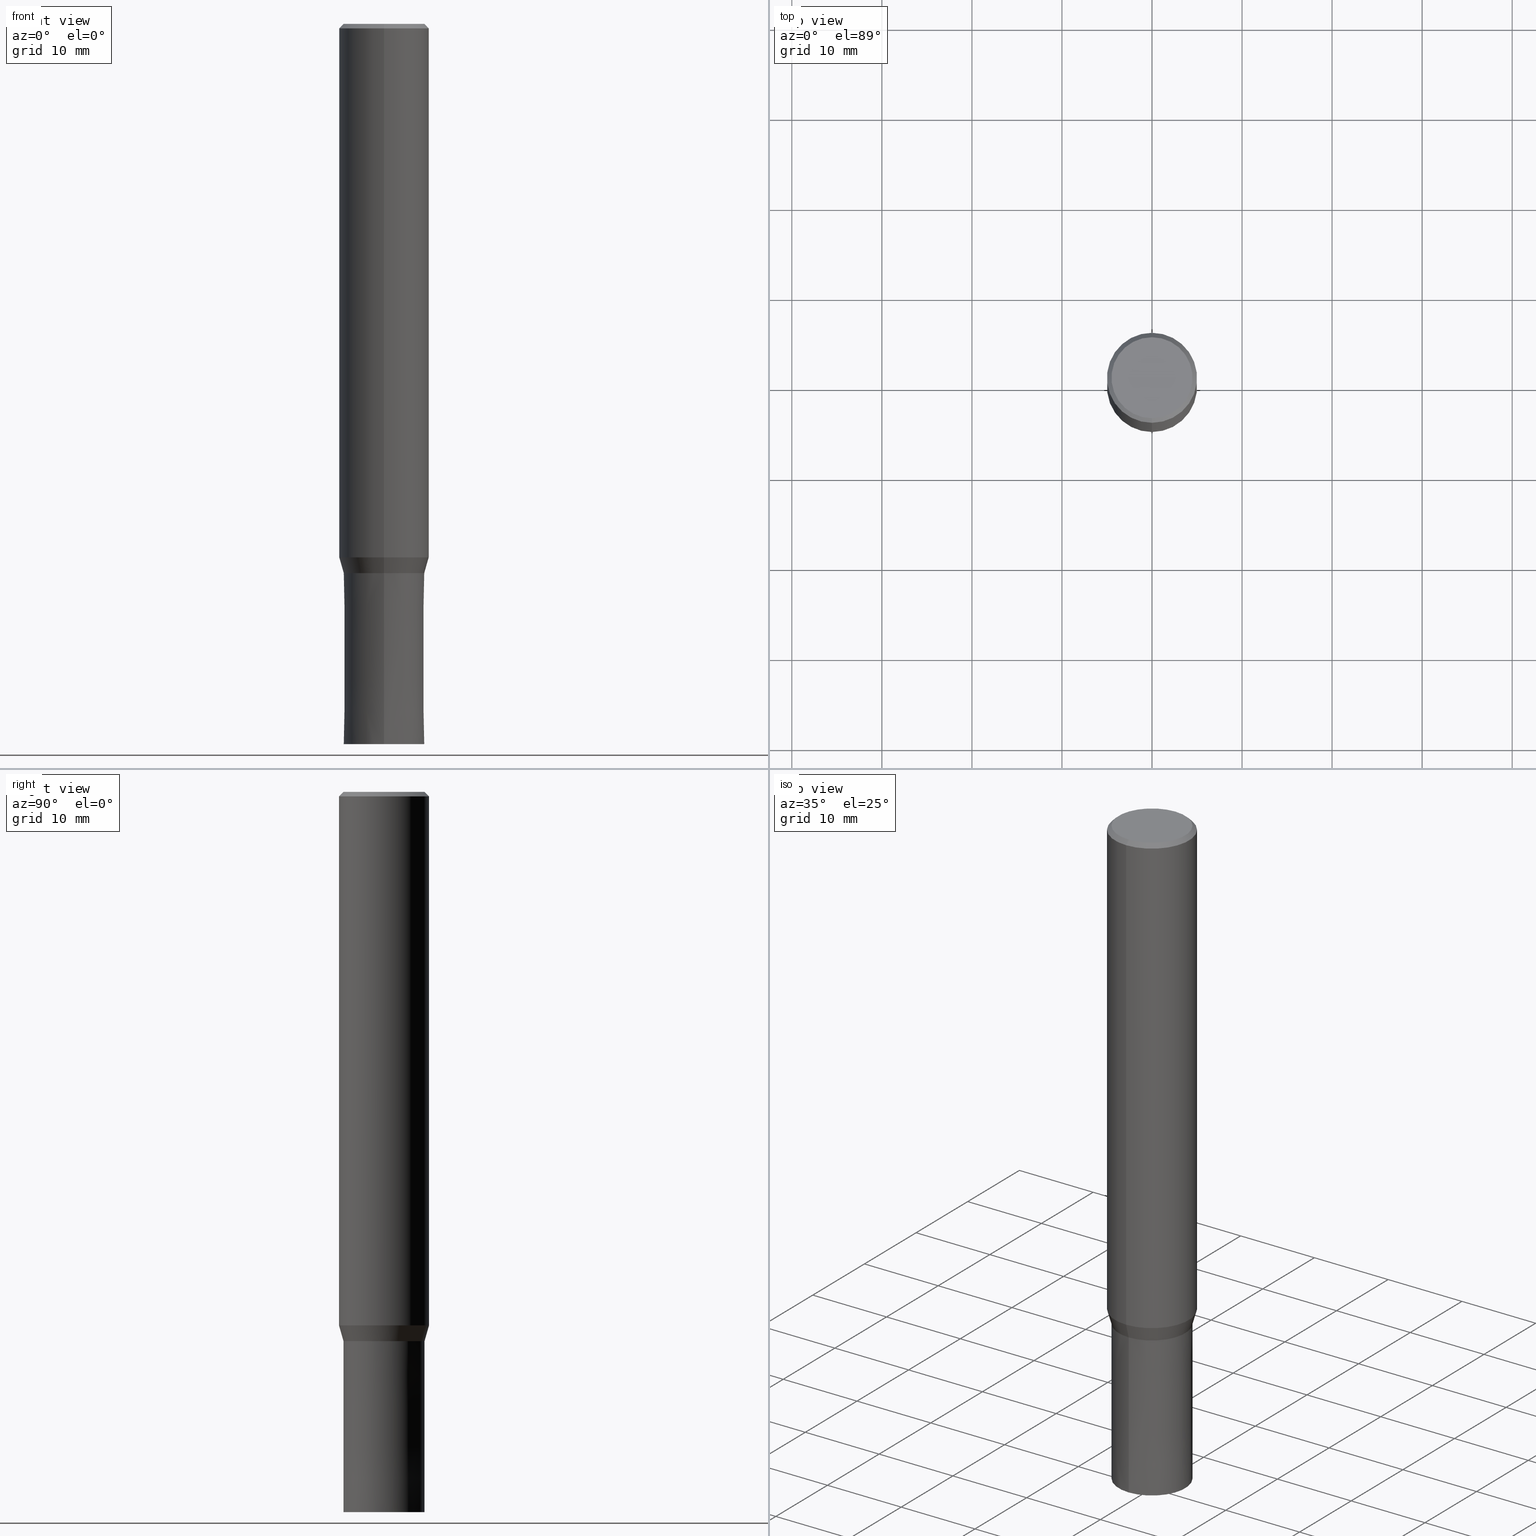
[diagram: canonical four-view strip — front | top / right | iso, engineering-drawing reading convention]
A machine part, canonical four-view strip (front | top / right | iso — engineering-drawing reading convention). The complete STEP part file that produces these views, byte-faithful:
ISO-10303-21;
HEADER;
FILE_DESCRIPTION(('no description'),'unknown implementation level');
FILE_NAME('CZS4090-1900-Huellk.stp','  ',('CIMSOURCE GmbH'),('CADClick - KiM GmbH - www.kimweb.de'),'unknown preprocess','ACIS','unknown authorization');
FILE_SCHEMA(('automotive_design'));
ENDSEC;
DATA;
#1=MECHANICAL_DESIGN_GEOMETRIC_PRESENTATION_REPRESENTATION(' ',(#14,#15,#16,#17,#18,#19,#20,#21,#22,#23,#24,#25,#26,#27,#28,#29,#30,#31,#32,#33,#34,#35,#36,#37,#38,#39,#40,#41,#42,#43,#44,#45,#46,#47,#48,#49,#50,#51,#52,#53,#54,#55,#56,#57,#58,#59,#60,#61,#62,#63,#64),#10);
#2=PRODUCT_DEFINITION_CONTEXT('',#65,'design');
#3=APPLICATION_PROTOCOL_DEFINITION('INTERNATIONAL STANDARD','automotive_design',1994,#65);
#4=PRODUCT_CATEGORY_RELATIONSHIP('NONE','NONE',#66,#67);
#5=SHAPE_DEFINITION_REPRESENTATION(#68,#69);
#6=PRODUCT_DEFINITION_CONTEXT('',#70,'design');
#7=APPLICATION_PROTOCOL_DEFINITION('INTERNATIONAL STANDARD','automotive_design',1994,#70);
#8=PRODUCT_CATEGORY_RELATIONSHIP('NONE','NONE',#71,#72);
#9=SHAPE_DEFINITION_REPRESENTATION(#73,#74);
#10= (GEOMETRIC_REPRESENTATION_CONTEXT(3)GLOBAL_UNCERTAINTY_ASSIGNED_CONTEXT((#77))GLOBAL_UNIT_ASSIGNED_CONTEXT((#79,#80,#81))REPRESENTATION_CONTEXT('NONE','WORKSPACE'));
#14=STYLED_ITEM('',(#83),#84);
#15=STYLED_ITEM('',(#85),#86);
#16=STYLED_ITEM('',(#87),#88);
#17=STYLED_ITEM('',(#89),#90);
#18=STYLED_ITEM('',(#91),#92);
#19=STYLED_ITEM('',(#93),#94);
#20=STYLED_ITEM('',(#95),#96);
#21=STYLED_ITEM('',(#97),#98);
#22=STYLED_ITEM('',(#99),#100);
#23=STYLED_ITEM('',(#101),#102);
#24=STYLED_ITEM('',(#103),#104);
#25=STYLED_ITEM('',(#105),#106);
#26=STYLED_ITEM('',(#107),#108);
#27=STYLED_ITEM('',(#109),#110);
#28=STYLED_ITEM('',(#111),#112);
#29=STYLED_ITEM('',(#113),#114);
#30=STYLED_ITEM('',(#115),#116);
#31=STYLED_ITEM('',(#117),#118);
#32=STYLED_ITEM('',(#119),#120);
#33=STYLED_ITEM('',(#121),#122);
#34=STYLED_ITEM('',(#123),#124);
#35=STYLED_ITEM('',(#125),#126);
#36=STYLED_ITEM('',(#127),#128);
#37=STYLED_ITEM('',(#129),#130);
#38=STYLED_ITEM('',(#131),#132);
#39=STYLED_ITEM('',(#133),#134);
#40=STYLED_ITEM('',(#135),#136);
#41=STYLED_ITEM('',(#137),#138);
#42=STYLED_ITEM('',(#139),#140);
#43=STYLED_ITEM('',(#141),#142);
#44=STYLED_ITEM('',(#143),#144);
#45=STYLED_ITEM('',(#145),#146);
#46=STYLED_ITEM('',(#147),#148);
#47=STYLED_ITEM('',(#149),#150);
#48=STYLED_ITEM('',(#151),#152);
#49=STYLED_ITEM('',(#153),#154);
#50=STYLED_ITEM('',(#155),#156);
#51=STYLED_ITEM('',(#157),#158);
#52=STYLED_ITEM('',(#159),#160);
#53=STYLED_ITEM('',(#161),#162);
#54=STYLED_ITEM('',(#163),#164);
#55=STYLED_ITEM('',(#165),#166);
#56=STYLED_ITEM('',(#167),#168);
#57=STYLED_ITEM('',(#169),#170);
#58=STYLED_ITEM('',(#171),#172);
#59=STYLED_ITEM('',(#173),#174);
#60=STYLED_ITEM('',(#175),#176);
#61=STYLED_ITEM('',(#177),#178);
#62=STYLED_ITEM('',(#179),#180);
#63=STYLED_ITEM('',(#181),#182);
#64=STYLED_ITEM('',(#183),#184);
#65=APPLICATION_CONTEXT(' ');
#66=PRODUCT_CATEGORY('part','NONE');
#67=PRODUCT_RELATED_PRODUCT_CATEGORY('detail',' ',(#185));
#68=PRODUCT_DEFINITION_SHAPE('NONE','NONE',#186);
#69=ADVANCED_BREP_SHAPE_REPRESENTATION('1',(#110,#187),#10);
#70=APPLICATION_CONTEXT(' ');
#71=PRODUCT_CATEGORY('part','NONE');
#72=PRODUCT_RELATED_PRODUCT_CATEGORY('detail',' ',(#188));
#73=PRODUCT_DEFINITION_SHAPE('NONE','NONE',#189);
#74=ADVANCED_BREP_SHAPE_REPRESENTATION('2',(#172,#190),#10);
#77=UNCERTAINTY_MEASURE_WITH_UNIT(LENGTH_MEASURE(1.0E-006),#79,'','');
#79= (CONVERSION_BASED_UNIT('MILLIMETRE',#193)LENGTH_UNIT()NAMED_UNIT(#196));
#80= (NAMED_UNIT(#198)PLANE_ANGLE_UNIT()SI_UNIT($,.RADIAN.));
#81= (NAMED_UNIT(#198)SOLID_ANGLE_UNIT()SI_UNIT($,.STERADIAN.));
#83=PRESENTATION_STYLE_ASSIGNMENT((#204));
#84=VERTEX_POINT('',#205);
#85=PRESENTATION_STYLE_ASSIGNMENT((#206));
#86=ADVANCED_FACE('',(#207),#208,.T.);
#87=PRESENTATION_STYLE_ASSIGNMENT((#209));
#88=EDGE_CURVE('',#142,#154,#210,.T.);
#89=PRESENTATION_STYLE_ASSIGNMENT((#211));
#90=VERTEX_POINT('',#212);
#91=PRESENTATION_STYLE_ASSIGNMENT((#213));
#92=EDGE_CURVE('',#106,#160,#214,.T.);
#93=PRESENTATION_STYLE_ASSIGNMENT((#215));
#94=EDGE_CURVE('',#154,#90,#216,.T.);
#95=PRESENTATION_STYLE_ASSIGNMENT((#217));
#96=EDGE_CURVE('',#108,#180,#218,.T.);
#97=PRESENTATION_STYLE_ASSIGNMENT((#219));
#98=ADVANCED_FACE('',(#220),#221,.T.);
#99=PRESENTATION_STYLE_ASSIGNMENT((#222));
#100=EDGE_CURVE('',#182,#180,#223,.T.);
#101=PRESENTATION_STYLE_ASSIGNMENT((#224));
#102=VERTEX_POINT('',#225);
#103=PRESENTATION_STYLE_ASSIGNMENT((#226));
#104=EDGE_CURVE('',#144,#84,#227,.T.);
#105=PRESENTATION_STYLE_ASSIGNMENT((#228));
#106=VERTEX_POINT('',#229);
#107=PRESENTATION_STYLE_ASSIGNMENT((#230));
#108=VERTEX_POINT('',#231);
#109=PRESENTATION_STYLE_ASSIGNMENT((#232));
#110=MANIFOLD_SOLID_BREP('1',#233);
#111=PRESENTATION_STYLE_ASSIGNMENT((#234));
#112=EDGE_CURVE('',#90,#154,#235,.T.);
#113=PRESENTATION_STYLE_ASSIGNMENT((#236));
#114=ADVANCED_FACE('',(#237,#238),#239,.T.);
#115=PRESENTATION_STYLE_ASSIGNMENT((#240));
#116=ADVANCED_FACE('',(#241),#242,.T.);
#117=PRESENTATION_STYLE_ASSIGNMENT((#243));
#118=ADVANCED_FACE('',(#244),#245,.T.);
#119=PRESENTATION_STYLE_ASSIGNMENT((#246));
#120=VERTEX_POINT('',#247);
#121=PRESENTATION_STYLE_ASSIGNMENT((#248));
#122=EDGE_CURVE('',#160,#138,#249,.T.);
#123=PRESENTATION_STYLE_ASSIGNMENT((#250));
#124=ADVANCED_FACE('',(#251),#252,.T.);
#125=PRESENTATION_STYLE_ASSIGNMENT((#253));
#126=ADVANCED_FACE('',(#254),#255,.T.);
#127=PRESENTATION_STYLE_ASSIGNMENT((#256));
#128=EDGE_CURVE('',#138,#108,#257,.T.);
#129=PRESENTATION_STYLE_ASSIGNMENT((#258));
#130=VERTEX_POINT('',#259);
#131=PRESENTATION_STYLE_ASSIGNMENT((#260));
#132=EDGE_CURVE('',#130,#144,#261,.T.);
#133=PRESENTATION_STYLE_ASSIGNMENT((#262));
#134=EDGE_CURVE('',#102,#130,#263,.T.);
#135=PRESENTATION_STYLE_ASSIGNMENT((#264));
#136=EDGE_CURVE('',#84,#144,#265,.T.);
#137=PRESENTATION_STYLE_ASSIGNMENT((#266));
#138=VERTEX_POINT('',#267);
#139=PRESENTATION_STYLE_ASSIGNMENT((#268));
#140=ADVANCED_FACE('',(#269),#270,.T.);
#141=PRESENTATION_STYLE_ASSIGNMENT((#271));
#142=VERTEX_POINT('',#272);
#143=PRESENTATION_STYLE_ASSIGNMENT((#273));
#144=VERTEX_POINT('',#274);
#145=PRESENTATION_STYLE_ASSIGNMENT((#275));
#146=EDGE_CURVE('',#108,#106,#276,.T.);
#147=PRESENTATION_STYLE_ASSIGNMENT((#277));
#148=EDGE_CURVE('',#180,#182,#278,.T.);
#149=PRESENTATION_STYLE_ASSIGNMENT((#279));
#150=EDGE_CURVE('',#120,#142,#280,.T.);
#151=PRESENTATION_STYLE_ASSIGNMENT((#281));
#152=EDGE_CURVE('',#182,#106,#282,.T.);
#153=PRESENTATION_STYLE_ASSIGNMENT((#283));
#154=VERTEX_POINT('',#284);
#155=PRESENTATION_STYLE_ASSIGNMENT((#285));
#156=EDGE_CURVE('',#138,#160,#286,.T.);
#157=PRESENTATION_STYLE_ASSIGNMENT((#287));
#158=ADVANCED_FACE('',(#288),#289,.T.);
#159=PRESENTATION_STYLE_ASSIGNMENT((#290));
#160=VERTEX_POINT('',#291);
#161=PRESENTATION_STYLE_ASSIGNMENT((#292));
#162=EDGE_CURVE('',#84,#102,#293,.T.);
#163=PRESENTATION_STYLE_ASSIGNMENT((#294));
#164=EDGE_CURVE('',#106,#108,#295,.T.);
#165=PRESENTATION_STYLE_ASSIGNMENT((#296));
#166=ADVANCED_FACE('',(#297),#298,.T.);
#167=PRESENTATION_STYLE_ASSIGNMENT((#299));
#168=ADVANCED_FACE('',(#300),#301,.T.);
#169=PRESENTATION_STYLE_ASSIGNMENT((#302));
#170=ADVANCED_FACE('',(#303),#304,.T.);
#171=PRESENTATION_STYLE_ASSIGNMENT((#305));
#172=MANIFOLD_SOLID_BREP('2',#306);
#173=PRESENTATION_STYLE_ASSIGNMENT((#307));
#174=EDGE_CURVE('',#90,#120,#308,.T.);
#175=PRESENTATION_STYLE_ASSIGNMENT((#309));
#176=ADVANCED_FACE('',(#310),#311,.T.);
#177=PRESENTATION_STYLE_ASSIGNMENT((#312));
#178=EDGE_CURVE('',#142,#120,#313,.T.);
#179=PRESENTATION_STYLE_ASSIGNMENT((#314));
#180=VERTEX_POINT('',#315);
#181=PRESENTATION_STYLE_ASSIGNMENT((#316));
#182=VERTEX_POINT('',#317);
#183=PRESENTATION_STYLE_ASSIGNMENT((#318));
#184=EDGE_CURVE('',#130,#102,#319,.T.);
#185=PRODUCT('1','1','PART-1-DESC',(#320));
#186=PRODUCT_DEFINITION('NONE','NONE',#321,#2);
#187=AXIS2_PLACEMENT_3D('',#322,#323,#324);
#188=PRODUCT('2','2','PART-2-DESC',(#325));
#189=PRODUCT_DEFINITION('NONE','NONE',#326,#6);
#190=AXIS2_PLACEMENT_3D('',#327,#328,#329);
#193=LENGTH_MEASURE_WITH_UNIT(LENGTH_MEASURE(1.0),#330);
#196=DIMENSIONAL_EXPONENTS(1.0,0.0,0.0,0.0,0.0,0.0,0.0);
#198=DIMENSIONAL_EXPONENTS(0.0,0.0,0.0,0.0,0.0,0.0,0.0);
#204=POINT_STYLE(' ',#331,POSITIVE_LENGTH_MEASURE(1.0E-006),#332);
#205=CARTESIAN_POINT('',(5.5107285922007E-016,-4.5,-80.0));
#206=SURFACE_STYLE_USAGE(.BOTH.,#333);
#207=FACE_OUTER_BOUND('',#334,.T.);
#208=CONICAL_SURFACE('',#335,4.74995,0.279208199033747);
#209=CURVE_STYLE('',#336,POSITIVE_LENGTH_MEASURE(1.0E-006),#337);
#210=LINE('',#338,#339);
#211=POINT_STYLE(' ',#340,POSITIVE_LENGTH_MEASURE(1.0E-006),#341);
#212=CARTESIAN_POINT('',(0.0,4.99995,-59.256));
#213=CURVE_STYLE('',#342,POSITIVE_LENGTH_MEASURE(1.0E-006),#343);
#214=LINE('',#344,#345);
#215=CURVE_STYLE('',#346,POSITIVE_LENGTH_MEASURE(1.0E-006),#347);
#216=CIRCLE('',#348,4.99995);
#217=CURVE_STYLE('',#349,POSITIVE_LENGTH_MEASURE(1.0E-006),#350);
#218=LINE('',#351,#352);
#219=SURFACE_STYLE_USAGE(.BOTH.,#353);
#220=FACE_OUTER_BOUND('',#354,.T.);
#221=PLANE('',#355);
#222=CURVE_STYLE('',#356,POSITIVE_LENGTH_MEASURE(1.0E-006),#357);
#223=CIRCLE('',#358,4.5);
#224=POINT_STYLE(' ',#359,POSITIVE_LENGTH_MEASURE(1.0E-006),#360);
#225=CARTESIAN_POINT('',(5.51060613156532E-016,-4.4999,-61.0));
#226=CURVE_STYLE('',#361,POSITIVE_LENGTH_MEASURE(1.0E-006),#362);
#227=CIRCLE('',#363,4.5);
#228=POINT_STYLE(' ',#364,POSITIVE_LENGTH_MEASURE(1.0E-006),#365);
#229=CARTESIAN_POINT('',(0.0,5.0,-0.5));
#230=POINT_STYLE(' ',#366,POSITIVE_LENGTH_MEASURE(1.0E-006),#367);
#231=CARTESIAN_POINT('',(6.12303176911189E-016,-5.0,-0.5));
#232=SURFACE_STYLE_USAGE(.BOTH.,#368);
#233=CLOSED_SHELL('',(#158,#116,#140,#114,#166,#176,#168,#86,#124));
#234=CURVE_STYLE('',#369,POSITIVE_LENGTH_MEASURE(1.0E-006),#370);
#235=CIRCLE('',#371,4.99995);
#236=SURFACE_STYLE_USAGE(.BOTH.,#372);
#237=FACE_OUTER_BOUND('',#373,.T.);
#238=FACE_BOUND('',#374,.T.);
#239=PLANE('',#375);
#240=SURFACE_STYLE_USAGE(.BOTH.,#376);
#241=FACE_OUTER_BOUND('',#377,.T.);
#242=CYLINDRICAL_SURFACE('',#378,5.0);
#243=SURFACE_STYLE_USAGE(.BOTH.,#379);
#244=FACE_OUTER_BOUND('',#380,.T.);
#245=CONICAL_SURFACE('',#381,4.49995,5.26315789467598E-006);
#246=POINT_STYLE(' ',#382,POSITIVE_LENGTH_MEASURE(1.0E-006),#383);
#247=CARTESIAN_POINT('',(0.0,4.49995,-61.0));
#248=CURVE_STYLE('',#384,POSITIVE_LENGTH_MEASURE(1.0E-006),#385);
#249=CIRCLE('',#386,5.0);
#250=SURFACE_STYLE_USAGE(.BOTH.,#387);
#251=FACE_OUTER_BOUND('',#388,.T.);
#252=PLANE('',#389);
#253=SURFACE_STYLE_USAGE(.BOTH.,#390);
#254=FACE_OUTER_BOUND('',#391,.T.);
#255=CONICAL_SURFACE('',#392,4.49995,5.26315789467598E-006);
#256=CURVE_STYLE('',#393,POSITIVE_LENGTH_MEASURE(1.0E-006),#394);
#257=LINE('',#395,#396);
#258=POINT_STYLE(' ',#397,POSITIVE_LENGTH_MEASURE(1.0E-006),#398);
#259=CARTESIAN_POINT('',(0.0,4.4999,-61.0));
#260=CURVE_STYLE('',#399,POSITIVE_LENGTH_MEASURE(1.0E-006),#400);
#261=LINE('',#401,#402);
#262=CURVE_STYLE('',#403,POSITIVE_LENGTH_MEASURE(1.0E-006),#404);
#263=CIRCLE('',#405,4.4999);
#264=CURVE_STYLE('',#406,POSITIVE_LENGTH_MEASURE(1.0E-006),#407);
#265=CIRCLE('',#408,4.5);
#266=POINT_STYLE(' ',#409,POSITIVE_LENGTH_MEASURE(1.0E-006),#410);
#267=CARTESIAN_POINT('',(6.12303176911189E-016,-5.0,-59.256));
#268=SURFACE_STYLE_USAGE(.BOTH.,#411);
#269=FACE_OUTER_BOUND('',#412,.T.);
#270=CONICAL_SURFACE('',#413,4.75,0.785398163397448);
#271=POINT_STYLE(' ',#414,POSITIVE_LENGTH_MEASURE(1.0E-006),#415);
#272=CARTESIAN_POINT('',(5.51066736188301E-016,-4.49995,-61.0));
#273=POINT_STYLE(' ',#416,POSITIVE_LENGTH_MEASURE(1.0E-006),#417);
#274=CARTESIAN_POINT('',(0.0,4.5,-80.0));
#275=CURVE_STYLE('',#418,POSITIVE_LENGTH_MEASURE(1.0E-006),#419);
#276=CIRCLE('',#420,5.0);
#277=CURVE_STYLE('',#421,POSITIVE_LENGTH_MEASURE(1.0E-006),#422);
#278=CIRCLE('',#423,4.5);
#279=CURVE_STYLE('',#424,POSITIVE_LENGTH_MEASURE(1.0E-006),#425);
#280=CIRCLE('',#426,4.49995);
#281=CURVE_STYLE('',#427,POSITIVE_LENGTH_MEASURE(1.0E-006),#428);
#282=LINE('',#429,#430);
#283=POINT_STYLE(' ',#431,POSITIVE_LENGTH_MEASURE(1.0E-006),#432);
#284=CARTESIAN_POINT('',(6.12297053879419E-016,-4.99995,-59.256));
#285=CURVE_STYLE('',#433,POSITIVE_LENGTH_MEASURE(1.0E-006),#434);
#286=CIRCLE('',#435,5.0);
#287=SURFACE_STYLE_USAGE(.BOTH.,#436);
#288=FACE_OUTER_BOUND('',#437,.T.);
#289=CONICAL_SURFACE('',#438,4.74995,0.279208199033747);
#290=POINT_STYLE(' ',#439,POSITIVE_LENGTH_MEASURE(1.0E-006),#440);
#291=CARTESIAN_POINT('',(0.0,5.0,-59.256));
#292=CURVE_STYLE('',#441,POSITIVE_LENGTH_MEASURE(1.0E-006),#442);
#293=LINE('',#443,#444);
#294=CURVE_STYLE('',#445,POSITIVE_LENGTH_MEASURE(1.0E-006),#446);
#295=CIRCLE('',#447,5.0);
#296=SURFACE_STYLE_USAGE(.BOTH.,#448);
#297=FACE_OUTER_BOUND('',#449,.T.);
#298=PLANE('',#450);
#299=SURFACE_STYLE_USAGE(.BOTH.,#451);
#300=FACE_OUTER_BOUND('',#452,.T.);
#301=CYLINDRICAL_SURFACE('',#453,5.0);
#302=SURFACE_STYLE_USAGE(.BOTH.,#454);
#303=FACE_OUTER_BOUND('',#455,.T.);
#304=PLANE('',#456);
#305=SURFACE_STYLE_USAGE(.BOTH.,#457);
#306=CLOSED_SHELL('',(#118,#170,#126,#98));
#307=CURVE_STYLE('',#458,POSITIVE_LENGTH_MEASURE(1.0E-006),#459);
#308=LINE('',#460,#461);
#309=SURFACE_STYLE_USAGE(.BOTH.,#462);
#310=FACE_OUTER_BOUND('',#463,.T.);
#311=CONICAL_SURFACE('',#464,4.75,0.785398163397448);
#312=CURVE_STYLE('',#465,POSITIVE_LENGTH_MEASURE(1.0E-006),#466);
#313=CIRCLE('',#467,4.49995);
#314=POINT_STYLE(' ',#468,POSITIVE_LENGTH_MEASURE(1.0E-006),#469);
#315=CARTESIAN_POINT('',(5.5107285922007E-016,-4.5,0.0));
#316=POINT_STYLE(' ',#470,POSITIVE_LENGTH_MEASURE(1.0E-006),#471);
#317=CARTESIAN_POINT('',(0.0,4.5,0.0));
#318=CURVE_STYLE('',#472,POSITIVE_LENGTH_MEASURE(1.0E-006),#473);
#319=CIRCLE('',#474,4.4999);
#320=PRODUCT_CONTEXT('',#65,'mechanical');
#321=PRODUCT_DEFINITION_FORMATION_WITH_SPECIFIED_SOURCE(' ','NONE',#185,.NOT_KNOWN.);
#322=CARTESIAN_POINT('',(0.0,0.0,0.0));
#323=DIRECTION('',(0.0,0.0,1.0));
#324=DIRECTION('',(1.0,0.0,0.0));
#325=PRODUCT_CONTEXT('',#70,'mechanical');
#326=PRODUCT_DEFINITION_FORMATION_WITH_SPECIFIED_SOURCE(' ','NONE',#188,.NOT_KNOWN.);
#327=CARTESIAN_POINT('',(0.0,0.0,0.0));
#328=DIRECTION('',(0.0,0.0,1.0));
#329=DIRECTION('',(1.0,0.0,0.0));
#330= (NAMED_UNIT(#196)LENGTH_UNIT()SI_UNIT(.MILLI.,.METRE.));
#331=PRE_DEFINED_MARKER('');
#332=COLOUR_RGB('',0.800000011920929,0.800000011920929,0.800000011920929);
#333=SURFACE_SIDE_STYLE('',(#476));
#334=EDGE_LOOP('',(#477,#478,#479,#480));
#335=AXIS2_PLACEMENT_3D('',#481,#482,#483);
#336=DRAUGHTING_PRE_DEFINED_CURVE_FONT('continuous');
#337=COLOUR_RGB('',0.498039215803146,0.498039215803146,0.498039215803146);
#338=CARTESIAN_POINT('',(5.8168189503386E-016,-4.74995,-60.128));
#339=VECTOR('',#484,1.0);
#340=PRE_DEFINED_MARKER('');
#341=COLOUR_RGB('',0.498039215803146,0.498039215803146,0.498039215803146);
#342=DRAUGHTING_PRE_DEFINED_CURVE_FONT('continuous');
#343=COLOUR_RGB('',0.498039215803146,0.498039215803146,0.498039215803146);
#344=CARTESIAN_POINT('',(-6.12303176911189E-016,5.0,-29.878));
#345=VECTOR('',#485,1.0);
#346=DRAUGHTING_PRE_DEFINED_CURVE_FONT('continuous');
#347=COLOUR_RGB('',0.498039215803146,0.498039215803146,0.498039215803146);
#348=AXIS2_PLACEMENT_3D('',#486,#487,#488);
#349=DRAUGHTING_PRE_DEFINED_CURVE_FONT('continuous');
#350=COLOUR_RGB('',0.498039215803146,0.498039215803146,0.498039215803146);
#351=CARTESIAN_POINT('',(5.81688018065629E-016,-4.75,-0.25));
#352=VECTOR('',#489,1.0);
#353=SURFACE_SIDE_STYLE('',(#490));
#354=EDGE_LOOP('',(#491,#492));
#355=AXIS2_PLACEMENT_3D('',#493,#494,#495);
#356=DRAUGHTING_PRE_DEFINED_CURVE_FONT('continuous');
#357=COLOUR_RGB('',0.498039215803146,0.498039215803146,0.498039215803146);
#358=AXIS2_PLACEMENT_3D('',#496,#497,#498);
#359=PRE_DEFINED_MARKER('');
#360=COLOUR_RGB('',0.800000011920929,0.800000011920929,0.800000011920929);
#361=DRAUGHTING_PRE_DEFINED_CURVE_FONT('continuous');
#362=COLOUR_RGB('',0.800000011920929,0.800000011920929,0.800000011920929);
#363=AXIS2_PLACEMENT_3D('',#499,#500,#501);
#364=PRE_DEFINED_MARKER('');
#365=COLOUR_RGB('',0.498039215803146,0.498039215803146,0.498039215803146);
#366=PRE_DEFINED_MARKER('');
#367=COLOUR_RGB('',0.498039215803146,0.498039215803146,0.498039215803146);
#368=SURFACE_SIDE_STYLE('',(#502));
#369=DRAUGHTING_PRE_DEFINED_CURVE_FONT('continuous');
#370=COLOUR_RGB('',0.498039215803146,0.498039215803146,0.498039215803146);
#371=AXIS2_PLACEMENT_3D('',#503,#504,#505);
#372=SURFACE_SIDE_STYLE('',(#506));
#373=EDGE_LOOP('',(#507,#508));
#374=EDGE_LOOP('',(#509,#510));
#375=AXIS2_PLACEMENT_3D('',#511,#512,#513);
#376=SURFACE_SIDE_STYLE('',(#514));
#377=EDGE_LOOP('',(#515,#516,#517,#518));
#378=AXIS2_PLACEMENT_3D('',#519,#520,#521);
#379=SURFACE_SIDE_STYLE('',(#522));
#380=EDGE_LOOP('',(#523,#524,#525,#526));
#381=AXIS2_PLACEMENT_3D('',#527,#528,#529);
#382=PRE_DEFINED_MARKER('');
#383=COLOUR_RGB('',0.498039215803146,0.498039215803146,0.498039215803146);
#384=DRAUGHTING_PRE_DEFINED_CURVE_FONT('continuous');
#385=COLOUR_RGB('',0.498039215803146,0.498039215803146,0.498039215803146);
#386=AXIS2_PLACEMENT_3D('',#530,#531,#532);
#387=SURFACE_SIDE_STYLE('',(#533));
#388=EDGE_LOOP('',(#534,#535));
#389=AXIS2_PLACEMENT_3D('',#536,#537,#538);
#390=SURFACE_SIDE_STYLE('',(#539));
#391=EDGE_LOOP('',(#540,#541,#542,#543));
#392=AXIS2_PLACEMENT_3D('',#544,#545,#546);
#393=DRAUGHTING_PRE_DEFINED_CURVE_FONT('continuous');
#394=COLOUR_RGB('',0.498039215803146,0.498039215803146,0.498039215803146);
#395=CARTESIAN_POINT('',(6.12303176911189E-016,-5.0,-29.878));
#396=VECTOR('',#547,1.0);
#397=PRE_DEFINED_MARKER('');
#398=COLOUR_RGB('',0.800000011920929,0.800000011920929,0.800000011920929);
#399=DRAUGHTING_PRE_DEFINED_CURVE_FONT('continuous');
#400=COLOUR_RGB('',0.800000011920929,0.800000011920929,0.800000011920929);
#401=CARTESIAN_POINT('',(-5.51066736188301E-016,4.49995,-70.5));
#402=VECTOR('',#548,1.0);
#403=DRAUGHTING_PRE_DEFINED_CURVE_FONT('continuous');
#404=COLOUR_RGB('',0.800000011920929,0.800000011920929,0.800000011920929);
#405=AXIS2_PLACEMENT_3D('',#549,#550,#551);
#406=DRAUGHTING_PRE_DEFINED_CURVE_FONT('continuous');
#407=COLOUR_RGB('',0.800000011920929,0.800000011920929,0.800000011920929);
#408=AXIS2_PLACEMENT_3D('',#552,#553,#554);
#409=PRE_DEFINED_MARKER('');
#410=COLOUR_RGB('',0.498039215803146,0.498039215803146,0.498039215803146);
#411=SURFACE_SIDE_STYLE('',(#555));
#412=EDGE_LOOP('',(#556,#557,#558,#559));
#413=AXIS2_PLACEMENT_3D('',#560,#561,#562);
#414=PRE_DEFINED_MARKER('');
#415=COLOUR_RGB('',0.498039215803146,0.498039215803146,0.498039215803146);
#416=PRE_DEFINED_MARKER('');
#417=COLOUR_RGB('',0.800000011920929,0.800000011920929,0.800000011920929);
#418=DRAUGHTING_PRE_DEFINED_CURVE_FONT('continuous');
#419=COLOUR_RGB('',0.498039215803146,0.498039215803146,0.498039215803146);
#420=AXIS2_PLACEMENT_3D('',#563,#564,#565);
#421=DRAUGHTING_PRE_DEFINED_CURVE_FONT('continuous');
#422=COLOUR_RGB('',0.498039215803146,0.498039215803146,0.498039215803146);
#423=AXIS2_PLACEMENT_3D('',#566,#567,#568);
#424=DRAUGHTING_PRE_DEFINED_CURVE_FONT('continuous');
#425=COLOUR_RGB('',0.498039215803146,0.498039215803146,0.498039215803146);
#426=AXIS2_PLACEMENT_3D('',#569,#570,#571);
#427=DRAUGHTING_PRE_DEFINED_CURVE_FONT('continuous');
#428=COLOUR_RGB('',0.498039215803146,0.498039215803146,0.498039215803146);
#429=CARTESIAN_POINT('',(-5.81688018065629E-016,4.75,-0.25));
#430=VECTOR('',#572,1.0);
#431=PRE_DEFINED_MARKER('');
#432=COLOUR_RGB('',0.498039215803146,0.498039215803146,0.498039215803146);
#433=DRAUGHTING_PRE_DEFINED_CURVE_FONT('continuous');
#434=COLOUR_RGB('',0.498039215803146,0.498039215803146,0.498039215803146);
#435=AXIS2_PLACEMENT_3D('',#573,#574,#575);
#436=SURFACE_SIDE_STYLE('',(#576));
#437=EDGE_LOOP('',(#577,#578,#579,#580));
#438=AXIS2_PLACEMENT_3D('',#581,#582,#583);
#439=PRE_DEFINED_MARKER('');
#440=COLOUR_RGB('',0.498039215803146,0.498039215803146,0.498039215803146);
#441=DRAUGHTING_PRE_DEFINED_CURVE_FONT('continuous');
#442=COLOUR_RGB('',0.800000011920929,0.800000011920929,0.800000011920929);
#443=CARTESIAN_POINT('',(5.51066736188301E-016,-4.49995,-70.5));
#444=VECTOR('',#584,1.0);
#445=DRAUGHTING_PRE_DEFINED_CURVE_FONT('continuous');
#446=COLOUR_RGB('',0.498039215803146,0.498039215803146,0.498039215803146);
#447=AXIS2_PLACEMENT_3D('',#585,#586,#587);
#448=SURFACE_SIDE_STYLE('',(#588));
#449=EDGE_LOOP('',(#589,#590));
#450=AXIS2_PLACEMENT_3D('',#591,#592,#593);
#451=SURFACE_SIDE_STYLE('',(#594));
#452=EDGE_LOOP('',(#595,#596,#597,#598));
#453=AXIS2_PLACEMENT_3D('',#599,#600,#601);
#454=SURFACE_SIDE_STYLE('',(#602));
#455=EDGE_LOOP('',(#603,#604));
#456=AXIS2_PLACEMENT_3D('',#605,#606,#607);
#457=SURFACE_SIDE_STYLE('',(#608));
#458=DRAUGHTING_PRE_DEFINED_CURVE_FONT('continuous');
#459=COLOUR_RGB('',0.498039215803146,0.498039215803146,0.498039215803146);
#460=CARTESIAN_POINT('',(-5.8168189503386E-016,4.74995,-60.128));
#461=VECTOR('',#609,1.0);
#462=SURFACE_SIDE_STYLE('',(#610));
#463=EDGE_LOOP('',(#611,#612,#613,#614));
#464=AXIS2_PLACEMENT_3D('',#615,#616,#617);
#465=DRAUGHTING_PRE_DEFINED_CURVE_FONT('continuous');
#466=COLOUR_RGB('',0.498039215803146,0.498039215803146,0.498039215803146);
#467=AXIS2_PLACEMENT_3D('',#618,#619,#620);
#468=PRE_DEFINED_MARKER('');
#469=COLOUR_RGB('',0.498039215803146,0.498039215803146,0.498039215803146);
#470=PRE_DEFINED_MARKER('');
#471=COLOUR_RGB('',0.498039215803146,0.498039215803146,0.498039215803146);
#472=DRAUGHTING_PRE_DEFINED_CURVE_FONT('continuous');
#473=COLOUR_RGB('',0.800000011920929,0.800000011920929,0.800000011920929);
#474=AXIS2_PLACEMENT_3D('',#621,#622,#623);
#476=SURFACE_STYLE_FILL_AREA(#624);
#477=ORIENTED_EDGE('',*,*,#174,.T.);
#478=ORIENTED_EDGE('',*,*,#178,.F.);
#479=ORIENTED_EDGE('',*,*,#88,.T.);
#480=ORIENTED_EDGE('',*,*,#94,.T.);
#481=CARTESIAN_POINT('',(0.0,0.0,-60.128));
#482=DIRECTION('',(-0.0,-0.0,1.0));
#483=DIRECTION('',(0.0,1.0,0.0));
#484=DIRECTION('',(3.37494895041124E-017,-0.275594597388538,0.961273955691222));
#485=DIRECTION('',(0.0,0.0,-1.0));
#486=CARTESIAN_POINT('',(0.0,0.0,-59.256));
#487=DIRECTION('',(0.0,0.0,-1.0));
#488=DIRECTION('',(0.0,1.0,0.0));
#489=DIRECTION('',(-8.65927457071936E-017,0.707106781186548,0.707106781186548));
#490=SURFACE_STYLE_FILL_AREA(#625);
#491=ORIENTED_EDGE('',*,*,#104,.T.);
#492=ORIENTED_EDGE('',*,*,#136,.T.);
#493=CARTESIAN_POINT('',(0.0,2.2475,-80.0));
#494=DIRECTION('',(0.0,0.0,-1.0));
#495=DIRECTION('',(0.0,1.0,0.0));
#496=CARTESIAN_POINT('',(0.0,0.0,0.0));
#497=DIRECTION('',(0.0,0.0,-1.0));
#498=DIRECTION('',(0.0,1.0,0.0));
#499=CARTESIAN_POINT('',(0.0,0.0,-80.0));
#500=DIRECTION('',(0.0,0.0,-1.0));
#501=DIRECTION('',(0.0,1.0,0.0));
#502=SURFACE_STYLE_FILL_AREA(#626);
#503=CARTESIAN_POINT('',(0.0,0.0,-59.256));
#504=DIRECTION('',(0.0,0.0,-1.0));
#505=DIRECTION('',(0.0,1.0,0.0));
#506=SURFACE_STYLE_FILL_AREA(#627);
#507=ORIENTED_EDGE('',*,*,#122,.T.);
#508=ORIENTED_EDGE('',*,*,#156,.T.);
#509=ORIENTED_EDGE('',*,*,#112,.F.);
#510=ORIENTED_EDGE('',*,*,#94,.F.);
#511=CARTESIAN_POINT('',(0.0,2.5,-59.256));
#512=DIRECTION('',(0.0,0.0,-1.0));
#513=DIRECTION('',(0.0,1.0,0.0));
#514=SURFACE_STYLE_FILL_AREA(#628);
#515=ORIENTED_EDGE('',*,*,#92,.F.);
#516=ORIENTED_EDGE('',*,*,#164,.T.);
#517=ORIENTED_EDGE('',*,*,#128,.F.);
#518=ORIENTED_EDGE('',*,*,#122,.F.);
#519=CARTESIAN_POINT('',(0.0,0.0,-29.878));
#520=DIRECTION('',(-0.0,-0.0,1.0));
#521=DIRECTION('',(0.0,1.0,0.0));
#522=SURFACE_STYLE_FILL_AREA(#629);
#523=ORIENTED_EDGE('',*,*,#132,.F.);
#524=ORIENTED_EDGE('',*,*,#184,.T.);
#525=ORIENTED_EDGE('',*,*,#162,.F.);
#526=ORIENTED_EDGE('',*,*,#104,.F.);
#527=CARTESIAN_POINT('',(0.0,0.0,-70.5));
#528=DIRECTION('',(0.0,-0.0,-1.0));
#529=DIRECTION('',(0.0,1.0,0.0));
#530=CARTESIAN_POINT('',(0.0,0.0,-59.256));
#531=DIRECTION('',(0.0,0.0,-1.0));
#532=DIRECTION('',(0.0,1.0,0.0));
#533=SURFACE_STYLE_FILL_AREA(#630);
#534=ORIENTED_EDGE('',*,*,#150,.T.);
#535=ORIENTED_EDGE('',*,*,#178,.T.);
#536=CARTESIAN_POINT('',(0.0,2.249975,-61.0));
#537=DIRECTION('',(0.0,0.0,-1.0));
#538=DIRECTION('',(0.0,1.0,0.0));
#539=SURFACE_STYLE_FILL_AREA(#631);
#540=ORIENTED_EDGE('',*,*,#132,.T.);
#541=ORIENTED_EDGE('',*,*,#136,.F.);
#542=ORIENTED_EDGE('',*,*,#162,.T.);
#543=ORIENTED_EDGE('',*,*,#134,.T.);
#544=CARTESIAN_POINT('',(0.0,0.0,-70.5));
#545=DIRECTION('',(0.0,-0.0,-1.0));
#546=DIRECTION('',(0.0,1.0,0.0));
#547=DIRECTION('',(-0.0,-0.0,1.0));
#548=DIRECTION('',(-6.44529659896085E-022,5.26315789465168E-006,-0.99999999998615));
#549=CARTESIAN_POINT('',(0.0,0.0,-61.0));
#550=DIRECTION('',(0.0,0.0,-1.0));
#551=DIRECTION('',(0.0,1.0,0.0));
#552=CARTESIAN_POINT('',(0.0,0.0,-80.0));
#553=DIRECTION('',(0.0,0.0,-1.0));
#554=DIRECTION('',(0.0,1.0,0.0));
#555=SURFACE_STYLE_FILL_AREA(#632);
#556=ORIENTED_EDGE('',*,*,#152,.F.);
#557=ORIENTED_EDGE('',*,*,#100,.T.);
#558=ORIENTED_EDGE('',*,*,#96,.F.);
#559=ORIENTED_EDGE('',*,*,#164,.F.);
#560=CARTESIAN_POINT('',(0.0,0.0,-0.25));
#561=DIRECTION('',(0.0,-0.0,-1.0));
#562=DIRECTION('',(0.0,1.0,0.0));
#563=CARTESIAN_POINT('',(0.0,0.0,-0.5));
#564=DIRECTION('',(0.0,0.0,-1.0));
#565=DIRECTION('',(0.0,1.0,0.0));
#566=CARTESIAN_POINT('',(0.0,0.0,0.0));
#567=DIRECTION('',(0.0,0.0,-1.0));
#568=DIRECTION('',(0.0,1.0,0.0));
#569=CARTESIAN_POINT('',(0.0,0.0,-61.0));
#570=DIRECTION('',(0.0,0.0,-1.0));
#571=DIRECTION('',(0.0,1.0,0.0));
#572=DIRECTION('',(-8.65927457071936E-017,0.707106781186548,-0.707106781186548));
#573=CARTESIAN_POINT('',(0.0,0.0,-59.256));
#574=DIRECTION('',(0.0,0.0,-1.0));
#575=DIRECTION('',(0.0,1.0,0.0));
#576=SURFACE_STYLE_FILL_AREA(#633);
#577=ORIENTED_EDGE('',*,*,#174,.F.);
#578=ORIENTED_EDGE('',*,*,#112,.T.);
#579=ORIENTED_EDGE('',*,*,#88,.F.);
#580=ORIENTED_EDGE('',*,*,#150,.F.);
#581=CARTESIAN_POINT('',(0.0,0.0,-60.128));
#582=DIRECTION('',(-0.0,-0.0,1.0));
#583=DIRECTION('',(0.0,1.0,0.0));
#584=DIRECTION('',(-6.44529659896085E-022,5.26315789465168E-006,0.99999999998615));
#585=CARTESIAN_POINT('',(0.0,0.0,-0.5));
#586=DIRECTION('',(0.0,0.0,-1.0));
#587=DIRECTION('',(0.0,1.0,0.0));
#588=SURFACE_STYLE_FILL_AREA(#634);
#589=ORIENTED_EDGE('',*,*,#100,.F.);
#590=ORIENTED_EDGE('',*,*,#148,.F.);
#591=CARTESIAN_POINT('',(0.0,2.25,0.0));
#592=DIRECTION('',(-0.0,0.0,1.0));
#593=DIRECTION('',(0.0,-1.0,0.0));
#594=SURFACE_STYLE_FILL_AREA(#635);
#595=ORIENTED_EDGE('',*,*,#92,.T.);
#596=ORIENTED_EDGE('',*,*,#156,.F.);
#597=ORIENTED_EDGE('',*,*,#128,.T.);
#598=ORIENTED_EDGE('',*,*,#146,.T.);
#599=CARTESIAN_POINT('',(0.0,0.0,-29.878));
#600=DIRECTION('',(-0.0,-0.0,1.0));
#601=DIRECTION('',(0.0,1.0,0.0));
#602=SURFACE_STYLE_FILL_AREA(#636);
#603=ORIENTED_EDGE('',*,*,#184,.F.);
#604=ORIENTED_EDGE('',*,*,#134,.F.);
#605=CARTESIAN_POINT('',(0.0,2.24995,-61.0));
#606=DIRECTION('',(-0.0,0.0,1.0));
#607=DIRECTION('',(0.0,-1.0,0.0));
#608=SURFACE_STYLE_FILL_AREA(#637);
#609=DIRECTION('',(3.37494895041124E-017,-0.275594597388538,-0.961273955691222));
#610=SURFACE_STYLE_FILL_AREA(#638);
#611=ORIENTED_EDGE('',*,*,#152,.T.);
#612=ORIENTED_EDGE('',*,*,#146,.F.);
#613=ORIENTED_EDGE('',*,*,#96,.T.);
#614=ORIENTED_EDGE('',*,*,#148,.T.);
#615=CARTESIAN_POINT('',(0.0,0.0,-0.25));
#616=DIRECTION('',(0.0,-0.0,-1.0));
#617=DIRECTION('',(0.0,1.0,0.0));
#618=CARTESIAN_POINT('',(0.0,0.0,-61.0));
#619=DIRECTION('',(0.0,0.0,-1.0));
#620=DIRECTION('',(0.0,1.0,0.0));
#621=CARTESIAN_POINT('',(0.0,0.0,-61.0));
#622=DIRECTION('',(0.0,0.0,-1.0));
#623=DIRECTION('',(0.0,1.0,0.0));
#624=FILL_AREA_STYLE('',(#639));
#625=FILL_AREA_STYLE('',(#640));
#626=FILL_AREA_STYLE('',(#641));
#627=FILL_AREA_STYLE('',(#642));
#628=FILL_AREA_STYLE('',(#643));
#629=FILL_AREA_STYLE('',(#644));
#630=FILL_AREA_STYLE('',(#645));
#631=FILL_AREA_STYLE('',(#646));
#632=FILL_AREA_STYLE('',(#647));
#633=FILL_AREA_STYLE('',(#648));
#634=FILL_AREA_STYLE('',(#649));
#635=FILL_AREA_STYLE('',(#650));
#636=FILL_AREA_STYLE('',(#651));
#637=FILL_AREA_STYLE('',(#652));
#638=FILL_AREA_STYLE('',(#653));
#639=FILL_AREA_STYLE_COLOUR('',#654);
#640=FILL_AREA_STYLE_COLOUR('',#655);
#641=FILL_AREA_STYLE_COLOUR('',#656);
#642=FILL_AREA_STYLE_COLOUR('',#657);
#643=FILL_AREA_STYLE_COLOUR('',#658);
#644=FILL_AREA_STYLE_COLOUR('',#659);
#645=FILL_AREA_STYLE_COLOUR('',#660);
#646=FILL_AREA_STYLE_COLOUR('',#661);
#647=FILL_AREA_STYLE_COLOUR('',#662);
#648=FILL_AREA_STYLE_COLOUR('',#663);
#649=FILL_AREA_STYLE_COLOUR('',#664);
#650=FILL_AREA_STYLE_COLOUR('',#665);
#651=FILL_AREA_STYLE_COLOUR('',#666);
#652=FILL_AREA_STYLE_COLOUR('',#667);
#653=FILL_AREA_STYLE_COLOUR('',#668);
#654=COLOUR_RGB('',0.498039215803146,0.498039215803146,0.498039215803146);
#655=COLOUR_RGB('',0.800000011920929,0.800000011920929,0.800000011920929);
#656=COLOUR_RGB('',0.498039215803146,0.498039215803146,0.498039215803146);
#657=COLOUR_RGB('',0.498039215803146,0.498039215803146,0.498039215803146);
#658=COLOUR_RGB('',0.498039215803146,0.498039215803146,0.498039215803146);
#659=COLOUR_RGB('',0.800000011920929,0.800000011920929,0.800000011920929);
#660=COLOUR_RGB('',0.498039215803146,0.498039215803146,0.498039215803146);
#661=COLOUR_RGB('',0.800000011920929,0.800000011920929,0.800000011920929);
#662=COLOUR_RGB('',0.498039215803146,0.498039215803146,0.498039215803146);
#663=COLOUR_RGB('',0.498039215803146,0.498039215803146,0.498039215803146);
#664=COLOUR_RGB('',0.498039215803146,0.498039215803146,0.498039215803146);
#665=COLOUR_RGB('',0.498039215803146,0.498039215803146,0.498039215803146);
#666=COLOUR_RGB('',0.800000011920929,0.800000011920929,0.800000011920929);
#667=COLOUR_RGB('',0.800000011920929,0.800000011920929,0.800000011920929);
#668=COLOUR_RGB('',0.498039215803146,0.498039215803146,0.498039215803146);
#669=AXIS2_PLACEMENT_3D('PCS',#670,#671,#672);
#670=CARTESIAN_POINT('',(0.0,0.0,0.0));
#671=DIRECTION('',(0.0,0.0,1.0));
#672=DIRECTION('',(1.0,0.0,0.0));
#673=AXIS2_PLACEMENT_3D('CIP',#674,#675,#676);
#674=CARTESIAN_POINT('',(0.0,0.0,-80.0));
#675=DIRECTION('',(0.0,0.0,1.0));
#676=DIRECTION('',(1.0,0.0,0.0));
#677=AXIS2_PLACEMENT_3D('CRP',#678,#679,#680);
#678=CARTESIAN_POINT('',(-4.5,0.0,-80.0));
#679=DIRECTION('',(0.0,0.0,1.0));
#680=DIRECTION('',(1.0,0.0,0.0));
#681=AXIS2_PLACEMENT_3D('MCS',#682,#683,#684);
#682=CARTESIAN_POINT('',(0.0,0.0,-59.256));
#683=DIRECTION('',(0.0,0.0,1.0));
#684=DIRECTION('',(1.0,0.0,0.0));
#685=CONSTRUCTIVE_GEOMETRY_REPRESENTATION_RELATIONSHIP('coordinate systems',$,#69,#686);
#686=CONSTRUCTIVE_GEOMETRY_REPRESENTATION('coordinate systems',(#669,#673,#677,#681),#10);
ENDSEC;
END-ISO-10303-21;
